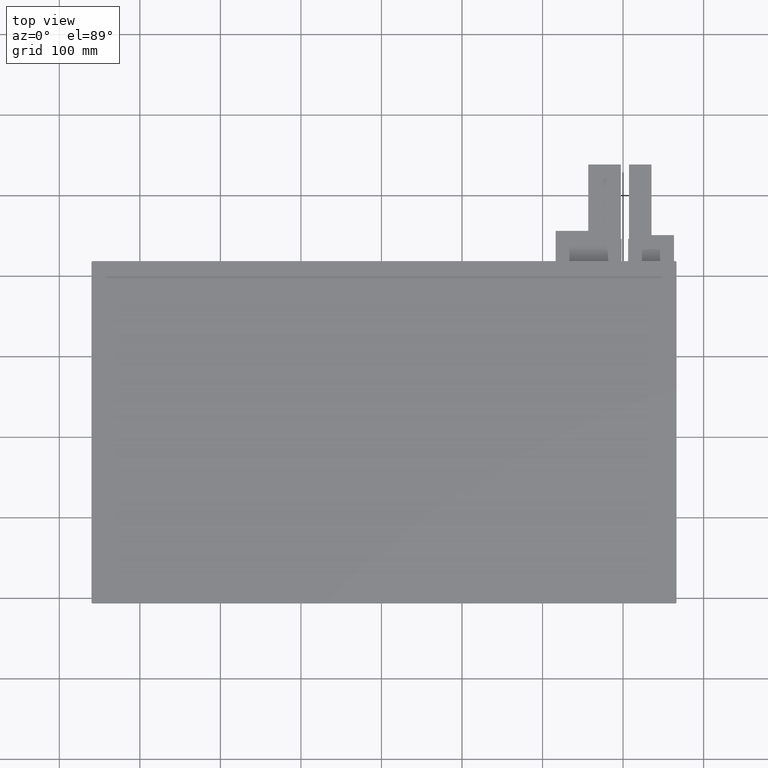
[diagram: clean part render]
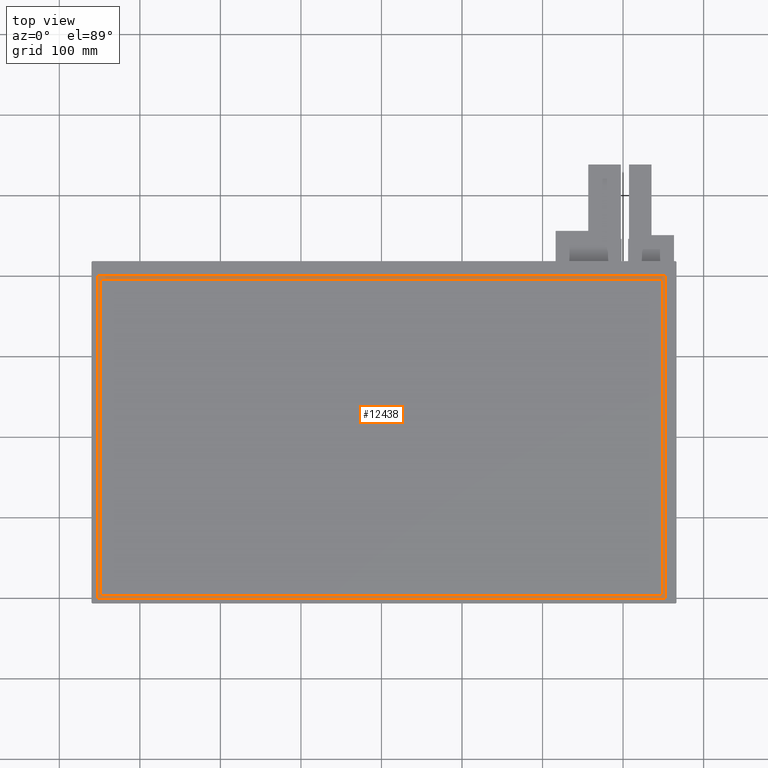
[diagram: same view with one face highlighted and labeled with its STEP entity id]
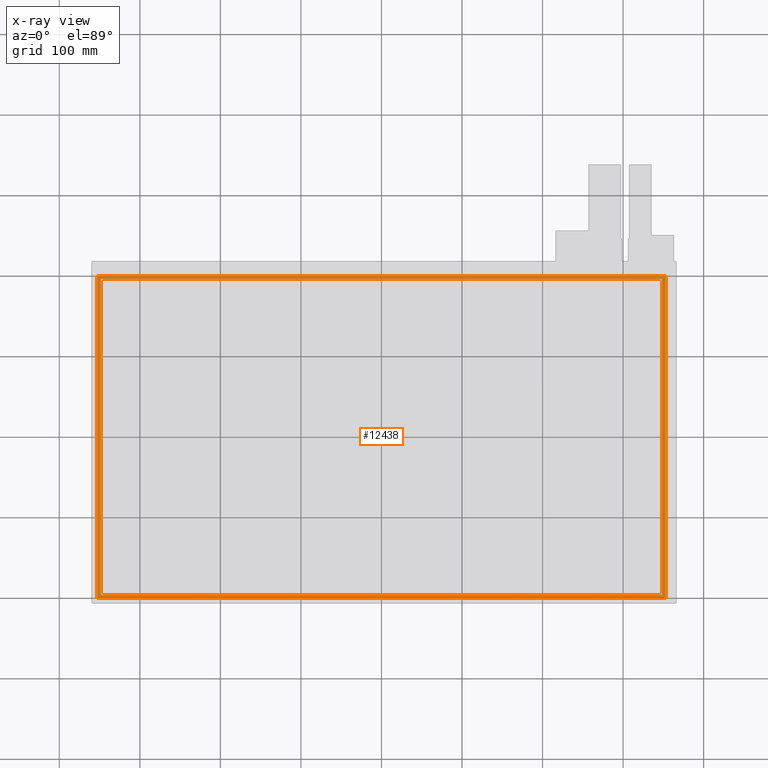
[diagram: x-ray of the same camera — body ghosted, the highlighted face saturated]
A machine part, top view. The second image highlights one B-rep face of the part: STEP entity #12438.
The next image is the same camera in x-ray: the body ghosted, the highlighted face saturated — about 0% of this face is hidden behind the body in this view.
In plain terms, the highlighted planar face has unit normal (0, 0, -1).
Its self-contained STEP definition (entity closure, byte-faithful):
#112=FACE_BOUND('',#1300,.T.);
#704=FACE_OUTER_BOUND('',#1299,.T.);
#1299=EDGE_LOOP('',(#11227,#11228,#11229,#11230));
#1300=EDGE_LOOP('',(#11231,#11232,#11233,#11234));
#3031=LINE('',#19546,#4775);
#3035=LINE('',#19553,#4779);
#3038=LINE('',#19559,#4782);
#3040=LINE('',#19562,#4784);
#3042=LINE('',#19567,#4786);
#3045=LINE('',#19572,#4789);
#3047=LINE('',#19576,#4791);
#3048=LINE('',#19578,#4792);
#4775=VECTOR('',#16007,10.);
#4779=VECTOR('',#16013,10.);
#4782=VECTOR('',#16018,10.);
#4784=VECTOR('',#16022,10.);
#4786=VECTOR('',#16026,10.);
#4789=VECTOR('',#16031,10.);
#4791=VECTOR('',#16035,10.);
#4792=VECTOR('',#16038,10.);
#5961=VERTEX_POINT('',#19543);
#5962=VERTEX_POINT('',#19545);
#5964=VERTEX_POINT('',#19551);
#5966=VERTEX_POINT('',#19557);
#5967=VERTEX_POINT('',#19564);
#5968=VERTEX_POINT('',#19566);
#5969=VERTEX_POINT('',#19570);
#5970=VERTEX_POINT('',#19574);
#7715=EDGE_CURVE('',#5961,#5962,#3031,.T.);
#7719=EDGE_CURVE('',#5964,#5961,#3035,.T.);
#7722=EDGE_CURVE('',#5966,#5964,#3038,.T.);
#7724=EDGE_CURVE('',#5962,#5966,#3040,.T.);
#7726=EDGE_CURVE('',#5967,#5968,#3042,.T.);
#7729=EDGE_CURVE('',#5969,#5967,#3045,.T.);
#7731=EDGE_CURVE('',#5970,#5969,#3047,.T.);
#7732=EDGE_CURVE('',#5968,#5970,#3048,.T.);
#11227=ORIENTED_EDGE('',*,*,#7732,.F.);
#11228=ORIENTED_EDGE('',*,*,#7726,.F.);
#11229=ORIENTED_EDGE('',*,*,#7729,.F.);
#11230=ORIENTED_EDGE('',*,*,#7731,.F.);
#11231=ORIENTED_EDGE('',*,*,#7724,.F.);
#11232=ORIENTED_EDGE('',*,*,#7715,.F.);
#11233=ORIENTED_EDGE('',*,*,#7719,.F.);
#11234=ORIENTED_EDGE('',*,*,#7722,.F.);
#11844=PLANE('',#13072);
#12438=ADVANCED_FACE('',(#704,#112),#11844,.F.);
#13072=AXIS2_PLACEMENT_3D('',#19579,#16039,#16040);
#16007=DIRECTION('',(1.,0.,0.));
#16013=DIRECTION('',(1.80868712170065E-16,-1.,0.));
#16018=DIRECTION('',(-1.,0.,0.));
#16022=DIRECTION('',(1.80868712170065E-16,1.,0.));
#16026=DIRECTION('',(-3.55404644621783E-16,1.,0.));
#16031=DIRECTION('',(-1.,-1.007290524185E-16,0.));
#16035=DIRECTION('',(0.,-1.,0.));
#16038=DIRECTION('',(1.,-5.03645262092501E-17,0.));
#16039=DIRECTION('center_axis',(0.,0.,-1.));
#16040=DIRECTION('ref_axis',(-1.,0.,0.));
#19543=CARTESIAN_POINT('',(-349.,-196.425,-0.1));
#19545=CARTESIAN_POINT('',(349.,-196.425,-0.1));
#19546=CARTESIAN_POINT('',(349.,-196.425,-0.1));
#19551=CARTESIAN_POINT('',(-349.,196.425,-0.1));
#19553=CARTESIAN_POINT('',(-349.,-196.425,-0.1));
#19557=CARTESIAN_POINT('',(349.,196.425,-0.1));
#19559=CARTESIAN_POINT('',(-349.,196.425,-0.1));
#19562=CARTESIAN_POINT('',(349.,196.425,-0.1));
#19564=CARTESIAN_POINT('',(-352.9,-199.925,-0.1));
#19566=CARTESIAN_POINT('',(-352.9,199.925,-0.1));
#19567=CARTESIAN_POINT('',(-352.9,199.925,-0.1));
#19570=CARTESIAN_POINT('',(352.5,-199.925,-0.1));
#19572=CARTESIAN_POINT('',(-352.9,-199.925,-0.1));
#19574=CARTESIAN_POINT('',(352.5,199.925,-0.1));
#19576=CARTESIAN_POINT('',(352.5,-199.925,-0.1));
#19578=CARTESIAN_POINT('',(352.5,199.925,-0.1));
#19579=CARTESIAN_POINT('Origin',(-0.200000000000102,1.77635683940025E-13,
-0.1));